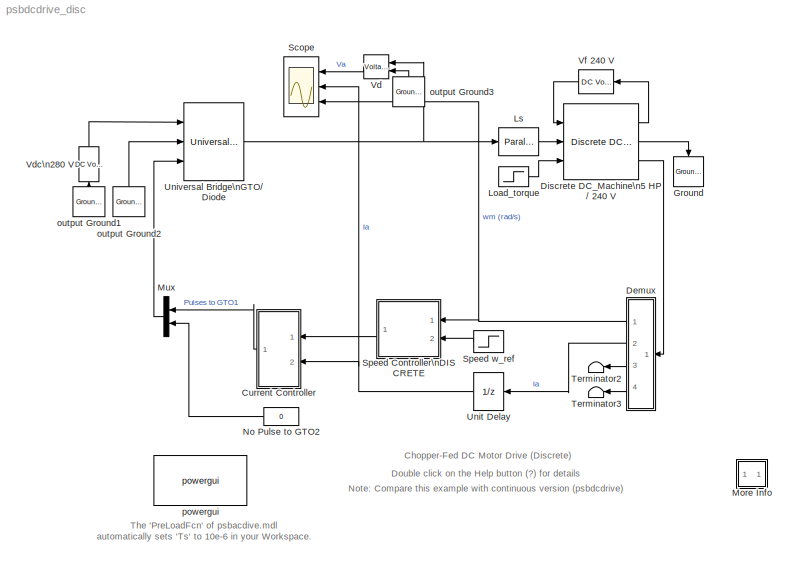
MODEL psbdcdrive_disc
KIND model
CONFIG InitFcn = powericon('psbinitsys',bdroot);
CONFIG PreLoadFcn = assignin('base','Ts',[10e-6])
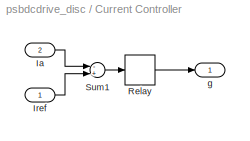
BLOCK [SubSystem] Current Controller
  MaskDescription = Hysteresis Current Controller
  MaskDisplay = plot(0,0,100,100,[45,45],[35,65],[55,55],[35,65],[45,65],[65,65],[35,55],[35,35])
  MaskEnableString = on
  MaskIconFrame = on
  MaskIconOpaque = off
  MaskIconRotate = none
  MaskIconUnits = autoscale
  MaskPromptString = Hysteresis band (A)
  MaskStyleString = edit
  MaskToolTipString = on
  MaskTunableValueString = on
  MaskValueString = 2
  MaskVariables = h=@1;
  MaskVisibilityString = on
  MinAlgLoopOccurrences = off
  Ports = [2, 1]
  RTWSystemCode = Auto
  TreatAsAtomicUnit = off
BLOCK [Inport] Current Controller/Ia
  IconDisplay = Port number
  LatchInput = off
  Port = 2
BLOCK [Inport] Current Controller/Iref
  IconDisplay = Port number
  LatchInput = off
  Port = 1
BLOCK [Relay] Current Controller/Relay
  OffSwitchValue = -h/2
  OnSwitchValue = h/2
BLOCK [Sum] Current Controller/Sum1
  Inputs = -+
  Ports = [2, 1]
BLOCK [Outport] Current Controller/g
  BusOutputAsStruct = off
  IconDisplay = Port number
  InitialOutput = 0
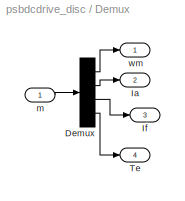
BLOCK [SubSystem] Demux
  MinAlgLoopOccurrences = off
  Ports = [1, 4]
  RTWSystemCode = Auto
  TreatAsAtomicUnit = off
BLOCK [Demux] Demux/Demux
  Ports = [1, 4]
BLOCK [Outport] Demux/Ia
  BusOutputAsStruct = off
  IconDisplay = Port number
  Port = 2
BLOCK [Outport] Demux/If
  BusOutputAsStruct = off
  IconDisplay = Port number
  Port = 3
BLOCK [Outport] Demux/Te
  BusOutputAsStruct = off
  IconDisplay = Port number
  Port = 4
BLOCK [Inport] Demux/m
  IconDisplay = Port number
  LatchInput = off
  Port = 1
BLOCK [Outport] Demux/wm
  BusOutputAsStruct = off
  IconDisplay = Port number
BLOCK [Reference] Discrete DC_Machine\n5 HP // 240 V  REF=powerlib_extras/Additional\nMachines/Discrete DC_Machine
  Bm = 0.02
  J = 0.05
  Laf = 1.23
  PSBOutputType = 110
  Ports = [3, 3]
  RLa = [0.5  0.01]
  RLf = [240  0]
  SourceBlock = powerlib_extras/Additional\nMachines/Discrete DC_Machine
  SourceType = Discrete DC machine
  Tf = 0
  Ts = Ts
  w0 = 0
BLOCK [Reference] Ground  REF=powerlib2/Connectors/Ground (input)
  Ports = [1]
  SourceBlock = powerlib2/Connectors/Ground (input)
  SourceType = Ground
  Tag = PoWeRsYsTeMbLoCk
BLOCK [Step] Load_torque 
  After = 25
  Before = 5
  SampleTime = 0
  Time = 1.5
BLOCK [Reference] Ls  REF=powerlib2/Elements/Parallel RLC Branch
  PSBOutputType = 1
  Ports = [1, 1]
  SourceBlock = powerlib2/Elements/Parallel RLC Branch
  SourceType = Parallel RLC Branch
  Tag = PoWeRsYsTeMbLoCk
  a = inf
  b = 10e-03
  c = 0
  mesure = None
BLOCK [SubSystem] More Info
  MaskDisplay = disp('?')
  MaskIconFrame = on
  MaskIconOpaque = on
  MaskIconRotate = none
  MaskIconUnits = autoscale
  MinAlgLoopOccurrences = off
  Ports = []
  RTWSystemCode = Auto
  TreatAsAtomicUnit = off
BLOCK [Mux] Mux
  DisplayOption = bar
  Inputs = 2
  Ports = [2, 1]
BLOCK [Constant] No Pulse to GTO2
  Value = 0
BLOCK [Scope] Scope
  DataFormat = StructureWithTime
  LimitDataPoints = off
  NumInputPorts = 3
  Ports = [3]
  SaveName = var
  SaveToWorkspace = on
  TickLabels = on
  YMax = 300~35~150
  YMin = -100~0~-25
  ZoomMode = xonly
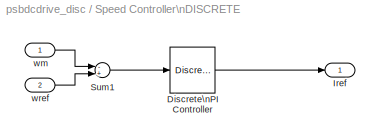
BLOCK [SubSystem] Speed Controller\nDISCRETE
  MaskCallbackString = |||
  MaskDescription = Proportional-Integral Speed Controller
  MaskDisplay = plot(0,0,100,100,[35,35,65],[70,30,30],[35,65],[45,60])
  MaskEnableString = on,on,on,on
  MaskIconFrame = on
  MaskIconOpaque = off
  MaskIconRotate = none
  MaskIconUnits = autoscale
  MaskPromptString = Proportional gain (Kp)|Integral gain (Ki)|Current limit (A)|Sample time (s) :
  MaskStyleString = edit,edit,edit,edit
  MaskTabNameString = ,,,
  MaskToolTipString = on,on,on,on
  MaskTunableValueString = on,on,on,on
  MaskType = PI controller
  MaskValueString = 1.6|16|30|Ts
  MaskVarAliasString = ,,,
  MaskVariables = Kp=@1;Ki=@2;Ilim=@3;Ts=@4;
  MaskVisibilityString = on,on,on,on
  MinAlgLoopOccurrences = off
  Ports = [2, 1]
  RTWSystemCode = Auto
  TreatAsAtomicUnit = off
BLOCK [Reference] Speed Controller\nDISCRETE/Discrete\nPI Controller  REF=powerlib_extras/Discrete \nControl Blocks/Discrete\nPI Controller
  Init = 0
  Ki = Ki
  Kp = Kp
  Par_Limits = [Ilim -Ilim]
  Ports = [1, 1]
  SourceBlock = powerlib_extras/Discrete \nControl Blocks/Discrete\nPI Controller
  SourceType = Discrete PI Controller
  Ts = Ts
BLOCK [Outport] Speed Controller\nDISCRETE/Iref
  BusOutputAsStruct = off
  IconDisplay = Port number
  InitialOutput = 0
BLOCK [Sum] Speed Controller\nDISCRETE/Sum1
  Inputs = -+
  Ports = [2, 1]
BLOCK [Inport] Speed Controller\nDISCRETE/wm
  IconDisplay = Port number
  LatchInput = off
  Port = 1
BLOCK [Inport] Speed Controller\nDISCRETE/wref
  IconDisplay = Port number
  LatchInput = off
  Port = 2
BLOCK [Step] Speed w_ref 
  After = 160
  Before = 120
  SampleTime = 0
  Time = 0.8
BLOCK [Terminator] Terminator2
BLOCK [Terminator] Terminator3
BLOCK [UnitDelay] Unit Delay
  SampleTime = Ts
BLOCK [Reference] Universal Bridge\nGTO//Diode  REF=powerlib2/Power\nElectronics/Universal Bridge
  Lon = 0
  PSBOutputType = 111
  Ports = [3, 1]
  Ron = 0.05
  SourceBlock = powerlib2/Power\nElectronics/Universal Bridge
  SourceType = Universal Bridge
  Tag = PoWeRsYsTeMbLoCk
  VFs = [  1  1  ]
  Vf = .8
  arms = 1
  cf = inf
  confi = ABC as output terminals
  device = GTO / Diodes
  gtoparameters = [ 10e-6 , 20e-6 ]
  igbtparameters = [ 1e-6 , 2e-6 ]
  injcc = 10000
  mesure = None
BLOCK [Reference] Vd  REF=powerlib2/Measurements/Voltage Measurement
  OutputType = Magnitude
  PSBOutputType = 0
  PSBequivalent = 0
  PhasorSimulation = off
  Ports = [2, 1]
  SourceBlock = powerlib2/Measurements/Voltage Measurement
  SourceType = Voltage Measurement
  Tag = PoWeRsYsTeMmEaSuReMeNt
BLOCK [Reference] Vdc\n280 V   REF=powerlib2/Electrical\nSources/DC Voltage Source
  PSBOutputType = 1
  Ports = [1, 1]
  SourceBlock = powerlib2/Electrical\nSources/DC Voltage Source
  SourceType = DC Voltage Source
  Tag = PoWeRsYsTeMbLoCk
  V = 280
  mesure = None
BLOCK [Reference] Vf 240 V  REF=powerlib2/Electrical\nSources/DC Voltage Source
  PSBOutputType = 1
  Ports = [1, 1]
  SourceBlock = powerlib2/Electrical\nSources/DC Voltage Source
  SourceType = DC Voltage Source
  Tag = PoWeRsYsTeMbLoCk
  V = 240
  mesure = None
BLOCK [Reference] output Ground1  REF=powerlib2/Connectors/Ground (output)
  PSBOutputType = 1
  Ports = [0, 1]
  SourceBlock = powerlib2/Connectors/Ground (output)
  SourceType = Ground
  Tag = PoWeRsYsTeMbLoCk
BLOCK [Reference] output Ground2  REF=powerlib2/Connectors/Ground (output)
  PSBOutputType = 1
  Ports = [0, 1]
  SourceBlock = powerlib2/Connectors/Ground (output)
  SourceType = Ground
  Tag = PoWeRsYsTeMbLoCk
BLOCK [Reference] output Ground3  REF=powerlib2/Connectors/Ground (output)
  PSBOutputType = 1
  Ports = [0, 1]
  SourceBlock = powerlib2/Connectors/Ground (output)
  SourceType = Ground
  Tag = PoWeRsYsTeMbLoCk
BLOCK [Reference] powergui  REF=powerlib2/powergui
  DisplayStyle = off
  Frange = [0:2:500]
  FreqAxis = off
  MaxFrequency = 1000
  Ports = []
  RmsSteady = 1
  SourceBlock = powerlib2/powergui
  SourceType = PSB option menu block
  StartTime = 0.0
  Ts = 10e-6
  Xlog = on
  Ylog = off
  ZoomFFT = on
  cycles = 1
  display = off
  echomessages = off
  frequency = 60
  frequencyindice = 1
  frequencyindicesteady = 1
  fundamental = 60
  methode = off
  save = off
  variable = ZData
ANNOTATION (root): Note: Compare this example with continuous version (psbdcdrive)
ANNOTATION (root): Chopper-Fed DC Motor Drive (Discrete)
ANNOTATION (root): Double click on the Help button (?) for details
ANNOTATION (root): The 'PreLoadFcn' of psbacdive.mdl\nautomatically sets 'Ts' to 10e-6 in your Workspace.
ANNOTATION More Info: 0< t < 0.8 s: Starting and Steady State Operation
ANNOTATION More Info: A DC motor is fed by a DC source through a chopper which consists of GTO thyristor and a free-wheeling diode.\n \nThe GTO and diode are simulated with the Universal Bridge block where the number of arms has been set to 1\nand the specified power electronic device is GTO/Diode. Each switch on the block icon represents a GTO/antiparallel diode pair.\nPulses are sent to the top GTO1 only. No pulses a...<+979ch>
ANNOTATION More Info: Chopper-Fed DC Motor Drive (Discrete)
ANNOTATION More Info: Circuit Description
ANNOTATION More Info: Demonstration
ANNOTATION More Info: During this period, the load torque is TL = 5.N.m and the motor reaches the reference speed (wref = 120 rad/s) given to the speed controller .\nThe initial values of reference torque and speed are set in the two Step blocks connected to the TL torque input of the motor. \nNotice that during the motor starting the current is maintained to 30 A, according to the current limit set in the speed regula...<+228ch>
ANNOTATION More Info: H. LeHuy (Universite Laval, Quebec) and G. Sybille (Hydro-Quebec)
ANNOTATION More Info: Note: This example is similar to the continuous version also provided in the Demos library, but discretisation allows faster simulation.
ANNOTATION More Info: Start the simulation and observe the motor voltage (Va), current (Ia) and speed (wm) on the scope.\nThe following observations can be made:
ANNOTATION More Info: The load torque is suddenly increased from 5 N.m to 25 N.m.\nThe current increases to 23 A, while the speed is maintained at the 160 rad/s set point.
ANNOTATION More Info: The reference speed is increased from 120 rad/s to 160 rad/s.\nThe speed controller regulates the speed in approximately 0.25 s and the average current stabilizes at 6.6 A. \nDuring the transient period, current is still maintained at 30 A.
ANNOTATION More Info: t = 0.8 s : Reference Speed Step
ANNOTATION More Info: t = 1.5 s : Load Torque Step
LINE Current Controller/Ia:1 -> Current Controller/Sum1:1
LINE Current Controller/Iref:1 -> Current Controller/Sum1:2
LINE Current Controller/Relay:1 -> Current Controller/g:1
LINE Current Controller/Sum1:1 -> Current Controller/Relay:1
LINE Current Controller:1 -> Mux:1
LINE Demux/Demux:1 -> Demux/wm:1
LINE Demux/Demux:2 -> Demux/Ia:1
LINE Demux/Demux:3 -> Demux/If:1
LINE Demux/Demux:4 -> Demux/Te:1
LINE Demux/m:1 -> Demux/Demux:1
NET Demux:1 -> Scope:3, Speed Controller\nDISCRETE:1
LINE Demux:2 -> Unit Delay:1
LINE Demux:3 -> Terminator2:1
LINE Demux:4 -> Terminator3:1
LINE Discrete DC_Machine\n5 HP // 240 V:1 -> Vf 240 V:1
LINE Discrete DC_Machine\n5 HP // 240 V:2 -> Ground:1
LINE Discrete DC_Machine\n5 HP // 240 V:3 -> Demux:1
LINE Load_torque :1 -> Discrete DC_Machine\n5 HP // 240 V:3
LINE Ls:1 -> Discrete DC_Machine\n5 HP // 240 V:2
LINE Mux:1 -> Universal Bridge\nGTO//Diode:3
LINE No Pulse to GTO2:1 -> Mux:2
LINE Speed Controller\nDISCRETE/Discrete\nPI Controller:1 -> Speed Controller\nDISCRETE/Iref:1
LINE Speed Controller\nDISCRETE/Sum1:1 -> Speed Controller\nDISCRETE/Discrete\nPI Controller:1
LINE Speed Controller\nDISCRETE/wm:1 -> Speed Controller\nDISCRETE/Sum1:1
LINE Speed Controller\nDISCRETE/wref:1 -> Speed Controller\nDISCRETE/Sum1:2
LINE Speed Controller\nDISCRETE:1 -> Current Controller:1
LINE Speed w_ref :1 -> Speed Controller\nDISCRETE:2
NET Unit Delay:1 -> Current Controller:2, Scope:2
NET Universal Bridge\nGTO//Diode:1 -> Ls:1, Vd:1
LINE Vd:1 -> Scope:1
LINE Vdc\n280 V :1 -> Universal Bridge\nGTO//Diode:1
LINE Vf 240 V:1 -> Discrete DC_Machine\n5 HP // 240 V:1
LINE output Ground1:1 -> Vdc\n280 V :1
LINE output Ground2:1 -> Universal Bridge\nGTO//Diode:2
LINE output Ground3:1 -> Vd:2
note: NET lines group one-source signal fan-out (src -> all destinations, sorted); 1:1 wires keep LINE
